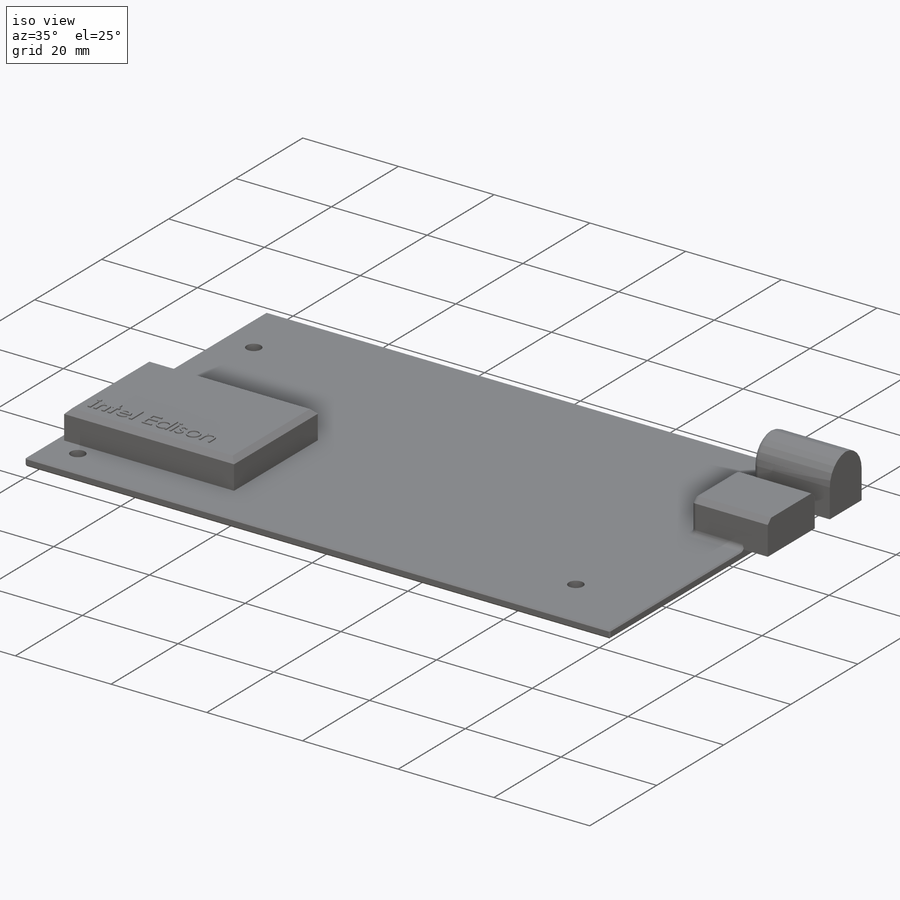
[diagram: iso view]
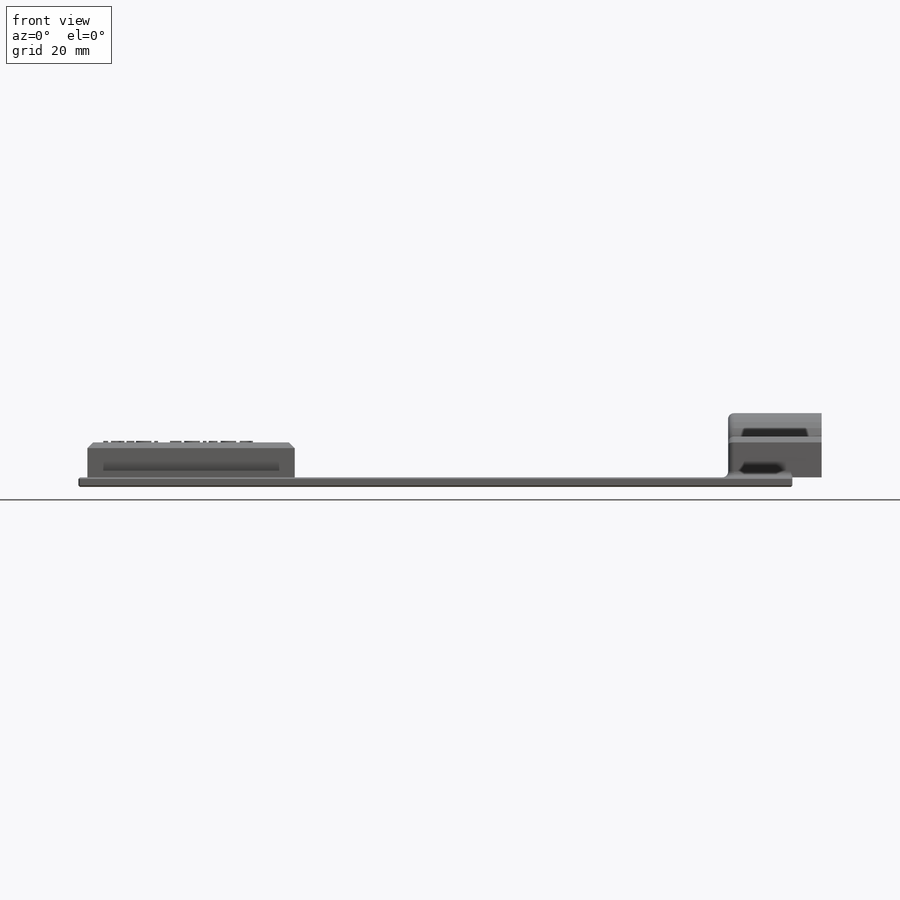
[diagram: front view]
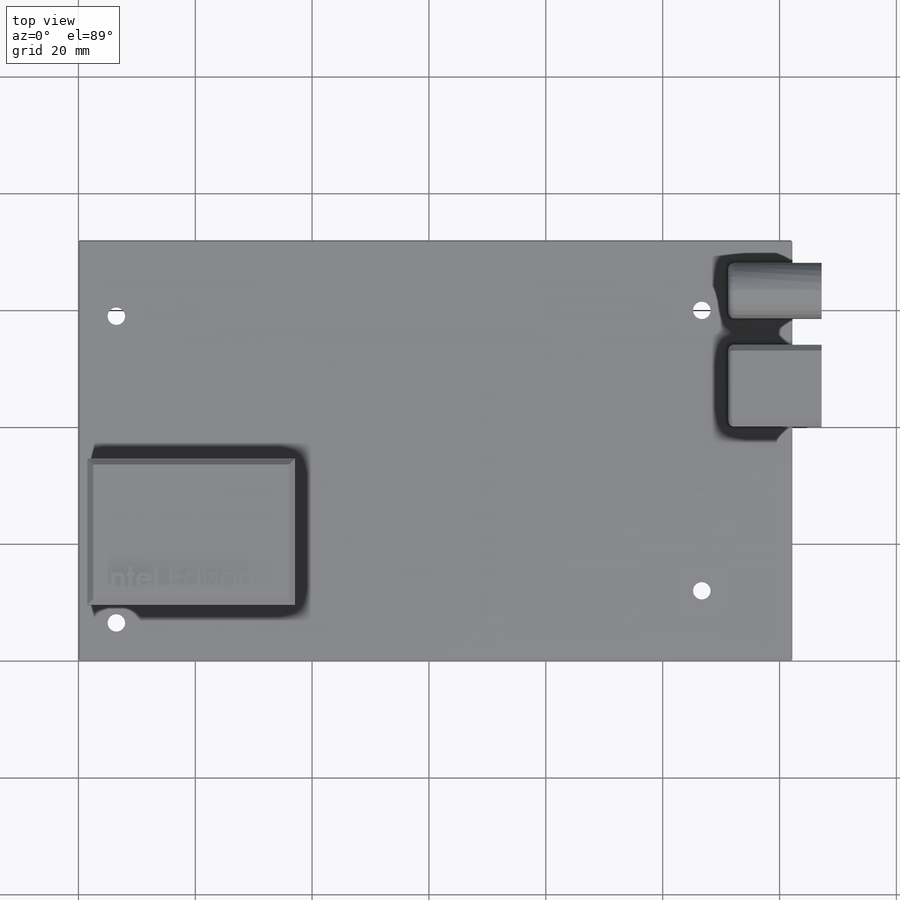
[diagram: top view]
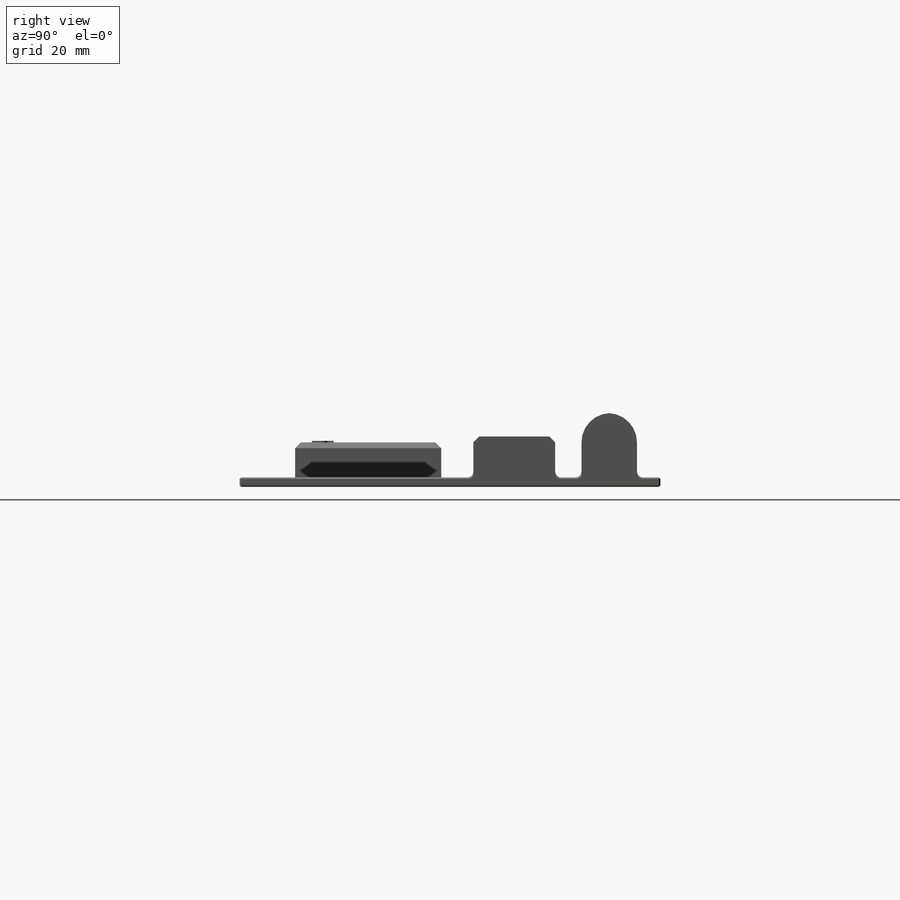
[diagram: right view]
SOLIDWORKS PART (.sldprt)
format: sldprt  version: not decoded by parser v0  size: 569,344 bytes
history: native  units: mm
features: sketch x8, extrude x5, cut_extrude x3, chamfer x3, fillet x2, material x1 (+13 scaffold rows collapsed)
feature tree (35):
  scaffold x13  (default folders/planes/origin — collapsed)
  material  "Material <not specified>"
  sketch  "Sketch1"  dims[D1=122.2mm D2=72.0mm]
  extrude  "Boss-Extrude1"  Depth=1.62mm
  sketch  "Sketch2"  dims[D1=4.0mm D2=28.0mm D3=11.0mm]
  extrude  "Boss-Extrude2"  Depth=11mm
  sketch  "Sketch3"  dims[D1=14.0mm D2=4.5mm]
  cut_extrude  "Cut-Extrude1"  Depth=4mm
  cut_extrude  "Cut-Extrude2"  [1 undecoded]
  sketch  "Sketch3<5>"  dims[D1=11.0mm]
  sketch  "Sketch5"
  extrude  "Boss-Extrude3"  Depth=5mm
  fillet  "Fillet1"  Radius=5mm
  chamfer  "Chamfer1"  Distance=1mm Angle=45deg
  fillet  "Fillet2"  Radius=1mm
  sketch  "Sketch4"  dims[D7=3.0mm D8=3.0mm D9=3.0mm D10=3.0mm D1=6.5mm D2=13.0mm D3=6.5mm D4=15.5mm D5=12.0mm D6=12.0mm]
  cut_extrude  "Cut-Extrude3"  [1 undecoded]
  sketch  "Sketch6"  dims[D1=~1.534907mm D2=9.5mm D3=25.0mm D4=35.5mm]
  extrude  "Boss-Extrude4"  Depth=6mm
  chamfer  "Chamfer2"  Distance=1mm Angle=45deg
  sketch  "Sketch7"
  extrude  "Boss-Extrude5"  Depth=0.25mm
  chamfer  "Chamfer3"  Distance=0.25mm Angle=45deg
decode coverage: 17 of 21 modeling features carry decoded parameters
note: ~ marks probable driven/reference dimensions
note: 2 parameter values undecoded
note: suppression state not decoded; provenance and decode notes live in map.json
